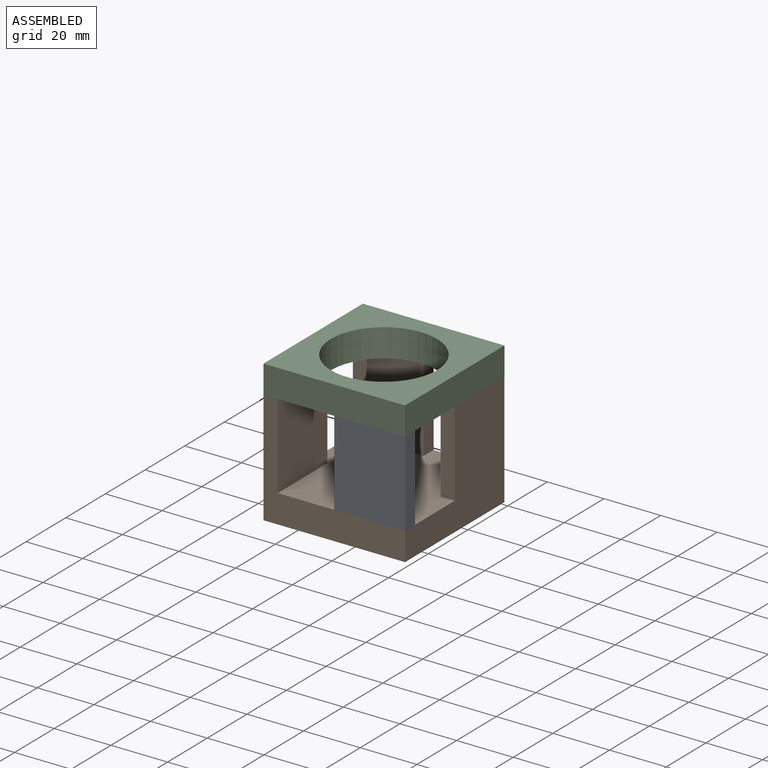
[diagram: assembled view]
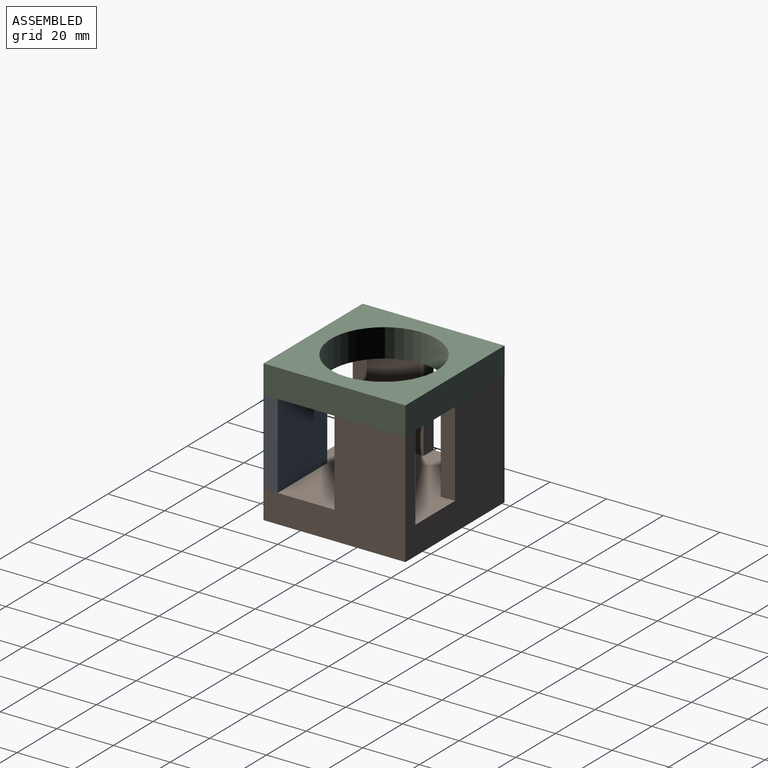
[diagram: assembled view, second angle]
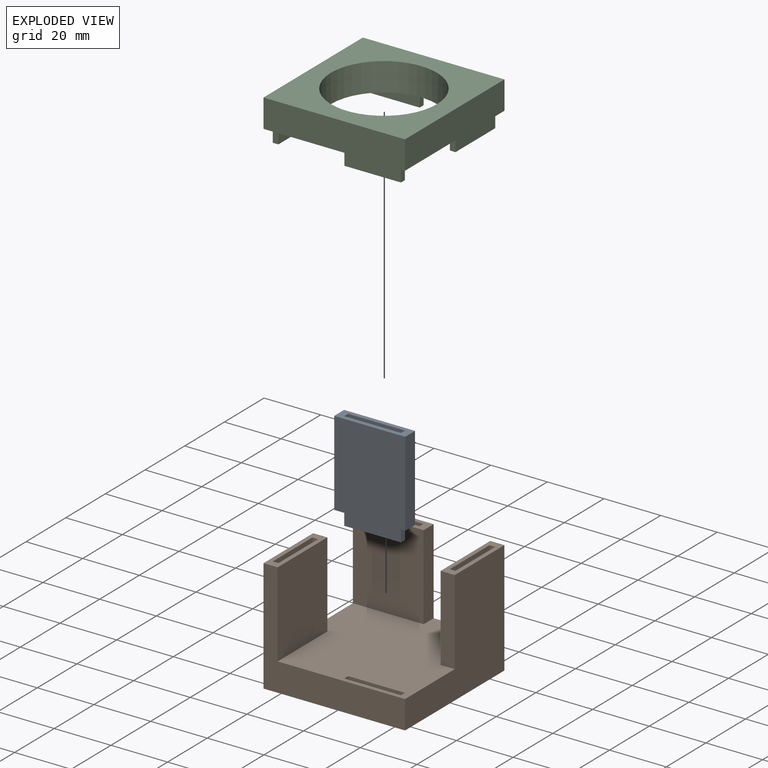
[diagram: exploded view]
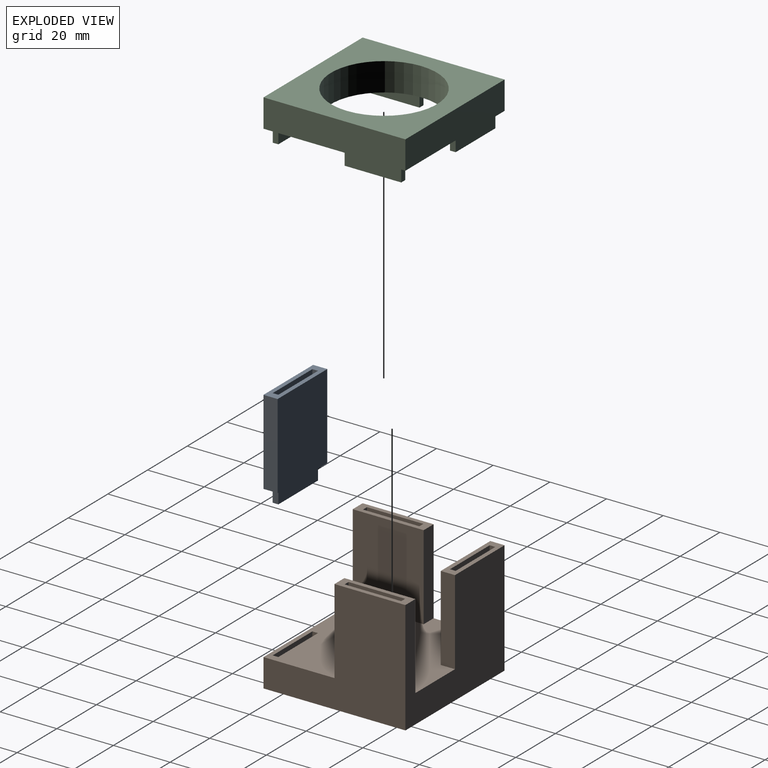
[diagram: exploded view, second angle]
ASSEMBLY  parts=3 mates=2
PART A: 16 faces, bbox 25x35x5 mm
  f0: plane 25.05x4.99mm, normal (0,-1,0), area 84.9mm2, adj f1,f2,f3,f4,f11,f12,f13,f14
  f1: plane 30x25.05mm, normal (0,0,1), area 751.5mm2, adj f0,f2,f4,f5
  f2: plane 30x4.99mm, normal (-1,0,0), area 149.7mm2, adj f0,f1,f3,f5
  f3: plane 30x25.05mm, normal (0,0,-1), area 751.5mm2, adj f0,f2,f4,f5
  f4: plane 30x4.99mm, normal (1,0,0), area 149.7mm2, adj f0,f1,f3,f5
  f5: plane 25.05x4.99mm, normal (0,1,0), area 85.1mm2, adj f1,f2,f3,f4,f6,f7,f8,f9
  f6: plane 20x5mm, normal (0,0,1), area 100mm2, adj f5,f7,f9,f10
  f7: plane 5x2mm, normal (1,0,0), area 10mm2, adj f5,f6,f8,f10
  f8: plane 20x5mm, normal (0,0,-1), area 100mm2, adj f5,f7,f9,f10
  f9: plane 5x2mm, normal (-1,0,0), area 10mm2, adj f5,f6,f8,f10
  f10: plane 20x2mm, normal (0,1,0), area 39.9mm2, adj f6,f7,f8,f9
  f11: plane 20x4.98mm, normal (0,0,1), area 99.6mm2, adj f0,f12,f14,f15
  f12: plane 4.98x2mm, normal (-1,0,0), area 10mm2, adj f0,f11,f13,f15
  f13: plane 20x4.98mm, normal (0,0,-1), area 99.6mm2, adj f0,f12,f14,f15
  f14: plane 4.98x2mm, normal (1,0,0), area 10mm2, adj f0,f11,f13,f15
  f15: plane 20x2mm, normal (0,-1,0), area 40.1mm2, adj f11,f12,f13,f14
PART B: 35 faces, bbox 50x50.1x40 mm
  f0: plane 50.1x49.98mm, normal (0,0,1), area 2088.1mm2, adj f4,f5,f6,f7,f9,f10,f11,f12
  f1: plane 24.99x5.02mm, normal (0,0,1), area 85.6mm2, adj f4,f7,f9,f10,f25,f26,f27,f28
  f2: plane 25.05x4.99mm, normal (0,0,1), area 85mm2, adj f6,f7,f11,f12,f20,f21,f22,f23
  f3: plane 25.05x5mm, normal (0,0,1), area 85.4mm2, adj f4,f5,f13,f14,f15,f16,f17,f18
  f4: plane 50.1x40mm, normal (-1,0,0), area 1403.1mm2, adj f0,f1,f3,f5,f7,f8,f9,f13
  f5: plane 49.98x40mm, normal (0,-1,0), area 649.7mm2, adj f0,f3,f4,f6,f8,f14
  f6: plane 50.1x40mm, normal (1,0,0), area 1252.4mm2, adj f0,f2,f5,f7,f8,f11
  f7: plane 49.98x40mm, normal (0,1,0), area 1399.2mm2, adj f0,f1,f2,f4,f6,f8,f10,f12
  f8: plane 50.1x49.98mm, normal (0,0,-1), area 2503.8mm2, adj f4,f5,f6,f7
  f9: plane 30x24.99mm, normal (0,-1,0), area 749.7mm2, adj f0,f1,f4,f10
  f10: plane 30x5.02mm, normal (1,0,0), area 150.7mm2, adj f0,f1,f7,f9
  f11: plane 30x4.99mm, normal (0,-1,0), area 149.8mm2, adj f0,f2,f6,f12
  f12: plane 30x25.05mm, normal (-1,0,0), area 751.5mm2, adj f0,f2,f7,f11
  f13: plane 30x5mm, normal (0,1,0), area 149.9mm2, adj f0,f3,f4,f14
  f14: plane 30x25.05mm, normal (1,0,0), area 751.5mm2, adj f0,f3,f5,f13
  f15: plane 19.9x5mm, normal (1,0,0), area 99.5mm2, adj f3,f16,f18,f19
  f16: plane 5x2mm, normal (0,1,0), area 10mm2, adj f3,f15,f17,f19
  f17: plane 19.9x5mm, normal (-1,0,0), area 99.5mm2, adj f3,f16,f18,f19
  f18: plane 5x2mm, normal (0,-1,0), area 10mm2, adj f3,f15,f17,f19
  f19: plane 19.9x2mm, normal (0,0,1), area 39.8mm2, adj f15,f16,f17,f18
  f20: plane 20.01x5mm, normal (1,0,0), area 100mm2, adj f2,f21,f23,f24
  f21: plane 5x2mm, normal (0,1,0), area 10mm2, adj f2,f20,f22,f24
  f22: plane 20.01x5mm, normal (-1,0,0), area 100mm2, adj f2,f21,f23,f24
  f23: plane 5x2mm, normal (0,-1,0), area 10mm2, adj f2,f20,f22,f24
  f24: plane 20.01x2mm, normal (0,0,1), area 40mm2, adj f20,f21,f22,f23
  f25: plane 20x5mm, normal (0,-1,0), area 100mm2, adj f1,f26,f28,f29
  f26: plane 5x1.99mm, normal (1,0,0), area 10mm2, adj f1,f25,f27,f29
  f27: plane 20x5mm, normal (0,1,0), area 100mm2, adj f1,f26,f28,f29
  f28: plane 5x1.99mm, normal (-1,0,0), area 10mm2, adj f1,f25,f27,f29
  f29: plane 20x1.99mm, normal (0,0,1), area 39.9mm2, adj f25,f26,f27,f28
  f30: plane 5x2mm, normal (1,0,0), area 10mm2, adj f0,f31,f33,f34
  f31: plane 20x5mm, normal (0,1,0), area 100mm2, adj f0,f30,f32,f34
  f32: plane 5x2mm, normal (-1,0,0), area 10mm2, adj f0,f31,f33,f34
  f33: plane 20x5mm, normal (0,-1,0), area 100mm2, adj f0,f30,f32,f34
  f34: plane 20x2mm, normal (0,0,1), area 40mm2, adj f30,f31,f32,f33
PART C: 27 faces, bbox 50x50.1x15 mm
  f0: plane 50.1x49.98mm, normal (0,0,1), area 1242mm2, adj f1,f2,f3,f4,f6,f7,f8,f9
  f1: plane 50.1x10mm, normal (-1,0,0), area 501mm2, adj f0,f2,f4,f5
  f2: plane 49.98x10mm, normal (0,-1,0), area 499.8mm2, adj f0,f1,f3,f5
  f3: plane 50.1x10mm, normal (1,0,0), area 501mm2, adj f0,f2,f4,f5
  f4: plane 49.98x10mm, normal (0,1,0), area 499.8mm2, adj f0,f1,f3,f5
  f5: plane 50.1x49.98mm, normal (0,0,-1), area 1401.8mm2, adj f1,f2,f3,f4,f26
  f6: plane 5x1.99mm, normal (-1,0,0), area 10mm2, adj f0,f7,f9,f10
  f7: plane 20x5mm, normal (0,-1,0), area 100mm2, adj f0,f6,f8,f10
  f8: plane 5x1.99mm, normal (1,0,0), area 10mm2, adj f0,f7,f9,f10
  f9: plane 20x5mm, normal (0,1,0), area 100mm2, adj f0,f6,f8,f10
  f10: plane 20x1.99mm, normal (0,0,1), area 39.8mm2, adj f6,f7,f8,f9
  f11: plane 20x5mm, normal (-1,0,0), area 100mm2, adj f0,f12,f14,f15
  f12: plane 5x2mm, normal (0,-1,0), area 10mm2, adj f0,f11,f13,f15
  f13: plane 20x5mm, normal (1,0,0), area 100mm2, adj f0,f12,f14,f15
  f14: plane 5x2mm, normal (0,1,0), area 10mm2, adj f0,f11,f13,f15
  f15: plane 20x2mm, normal (0,0,1), area 40mm2, adj f11,f12,f13,f14
  f16: plane 20x5mm, normal (0,1,0), area 100mm2, adj f0,f17,f19,f20
  f17: plane 5x2mm, normal (-1,0,0), area 10mm2, adj f0,f16,f18,f20
  f18: plane 20x5mm, normal (0,-1,0), area 100mm2, adj f0,f17,f19,f20
  f19: plane 5x2mm, normal (1,0,0), area 10mm2, adj f0,f16,f18,f20
  f20: plane 20x2mm, normal (0,0,1), area 39.9mm2, adj f16,f17,f18,f19
  f21: plane 20x5mm, normal (-1,0,0), area 100mm2, adj f0,f22,f24,f25
  f22: plane 5x2mm, normal (0,-1,0), area 10mm2, adj f0,f21,f23,f25
  f23: plane 20x5mm, normal (1,0,0), area 100mm2, adj f0,f22,f24,f25
  f24: plane 5x2mm, normal (0,1,0), area 10mm2, adj f0,f21,f23,f25
  f25: plane 20x2mm, normal (0,0,1), area 40mm2, adj f21,f22,f23,f24
  f26: cylinder r=18.73mm len=37.46mm, axis (0,0,-1), area 1177mm2, adj f0,f5
PLACE A rot(axis=(0,-0.71,-0.71),180deg) t=(28.3,-19.6,41.67)mm
PLACE B t=(0.48,-0.15,6.69)mm
PLACE C rot(axis=(0,-1,0),180deg) t=(0.48,-0.15,51.67)mm
MATE fastened A.f15 <-> B.f34  axis (0,0,-1) through (12.97,-22.7,6.69)mm
MATE parallel A.f10 <-> C.f20  axis (0,0,1) through (12.97,-22.7,36.67)mm
